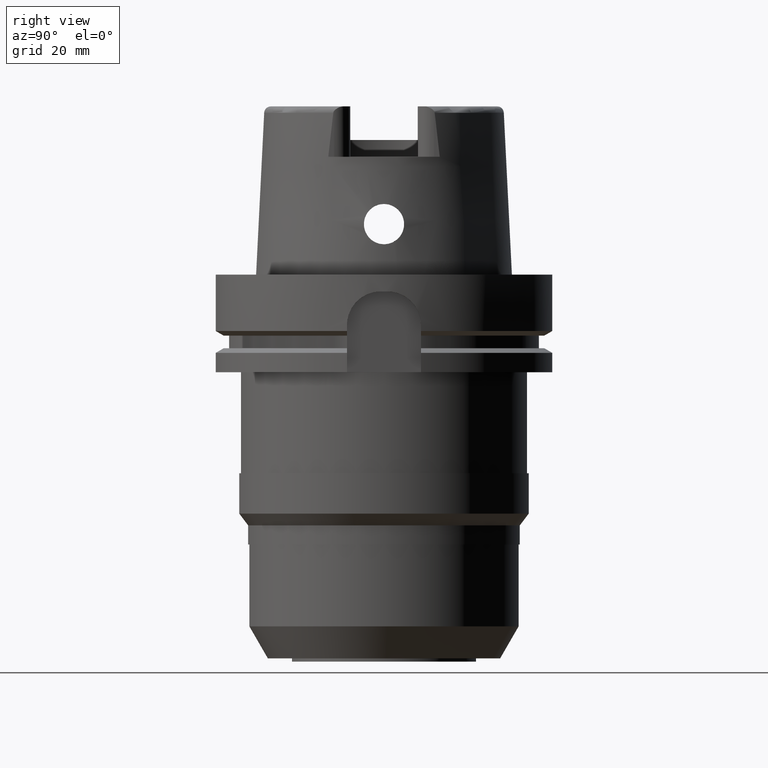
[diagram: clean part render]
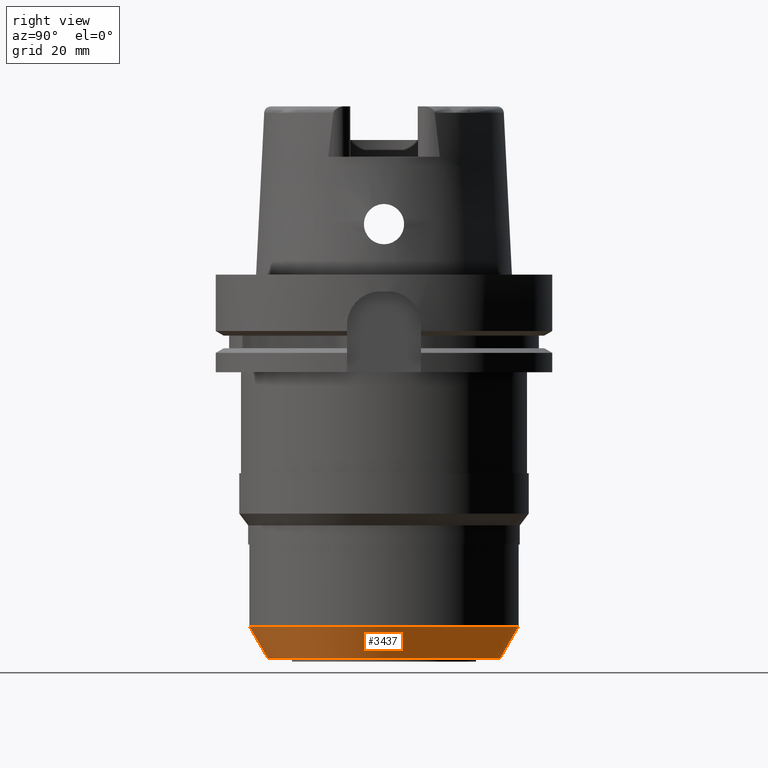
[diagram: same view with one face highlighted and labeled with its STEP entity id]
A machine part, right view. The second image highlights one B-rep face of the part: STEP entity #3437.
In plain terms, the highlighted conical surface has half-angle 30 deg.
Its self-contained STEP definition (entity closure, byte-faithful):
#1063=CARTESIAN_POINT('',(0.E0,0.E0,-1.14E2));
#1064=DIRECTION('',(0.E0,0.E0,1.E0));
#1065=DIRECTION('',(0.E0,-1.E0,0.E0));
#1066=AXIS2_PLACEMENT_3D('',#1063,#1064,#1065);
#1095=DIRECTION('',(0.E0,-5.E-1,-8.660254037845E-1));
#1096=VECTOR('',#1095,1.096965511460E1);
#1097=CARTESIAN_POINT('',(0.E0,4.E1,-1.045E2));
#1098=LINE('',#1097,#1096);
#1102=CARTESIAN_POINT('',(0.E0,0.E0,-1.045E2));
#1103=DIRECTION('',(0.E0,0.E0,1.E0));
#1104=DIRECTION('',(0.E0,-1.E0,0.E0));
#1105=AXIS2_PLACEMENT_3D('',#1102,#1103,#1104);
#1118=DIRECTION('',(0.E0,5.E-1,-8.660254037845E-1));
#1119=VECTOR('',#1118,1.096965511460E1);
#1120=CARTESIAN_POINT('',(0.E0,-4.E1,-1.045E2));
#1121=LINE('',#1120,#1119);
#2472=CARTESIAN_POINT('',(0.E0,-3.451517244270E1,-1.14E2));
#2473=CARTESIAN_POINT('',(0.E0,3.451517244270E1,-1.14E2));
#2474=VERTEX_POINT('',#2472);
#2475=VERTEX_POINT('',#2473);
#2476=CARTESIAN_POINT('',(0.E0,4.E1,-1.045E2));
#2477=VERTEX_POINT('',#2476);
#2478=CARTESIAN_POINT('',(0.E0,-4.E1,-1.045E2));
#2479=VERTEX_POINT('',#2478);
#3423=CARTESIAN_POINT('',(0.E0,0.E0,-1.0925E2));
#3424=DIRECTION('',(0.E0,0.E0,1.E0));
#3425=DIRECTION('',(0.E0,1.E0,0.E0));
#3426=AXIS2_PLACEMENT_3D('',#3423,#3424,#3425);
#3427=CONICAL_SURFACE('',#3426,3.725758622135E1,3.E1);
#3429=ORIENTED_EDGE('',*,*,#3428,.T.);
#3430=ORIENTED_EDGE('',*,*,#3412,.F.);
#3432=ORIENTED_EDGE('',*,*,#3431,.F.);
#3434=ORIENTED_EDGE('',*,*,#3433,.T.);
#3435=EDGE_LOOP('',(#3429,#3430,#3432,#3434));
#3436=FACE_OUTER_BOUND('',#3435,.F.);
#1067=CIRCLE('',#1066,3.451517244270E1);
#1106=CIRCLE('',#1105,4.E1);
#3412=EDGE_CURVE('',#2474,#2475,#1067,.T.);
#3428=EDGE_CURVE('',#2477,#2475,#1098,.T.);
#3431=EDGE_CURVE('',#2479,#2474,#1121,.T.);
#3433=EDGE_CURVE('',#2479,#2477,#1106,.T.);
#3437=ADVANCED_FACE('',(#3436),#3427,.T.);